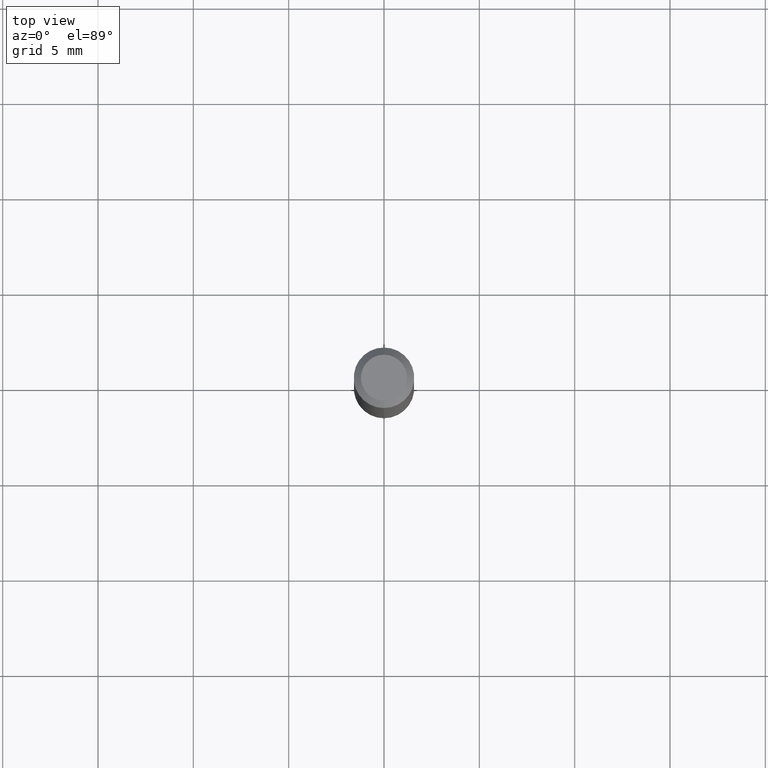
[diagram: clean part render]
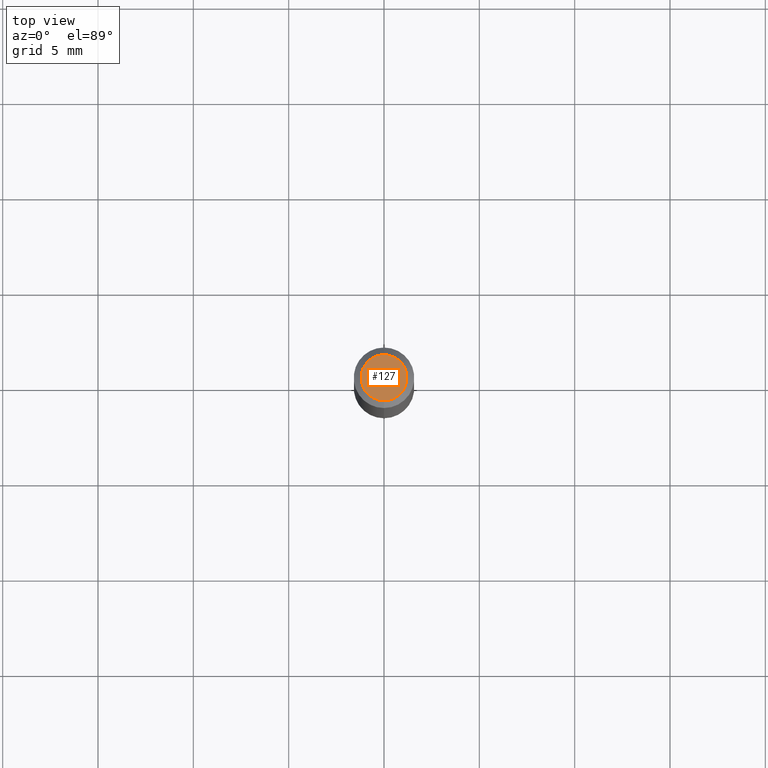
[diagram: same view with one face highlighted and labeled with its STEP entity id]
A machine part, top view. The second image highlights one B-rep face of the part: STEP entity #127.
In plain terms, the highlighted planar face has unit normal (0, -0, -1).
Its self-contained STEP definition (entity closure, byte-faithful):
#1 = AXIS2_PLACEMENT_3D ( 'NONE', #476, #196, #314 ) ;
#2 = PLANE ( 'NONE',  #383 ) ;
#22 = EDGE_CURVE ( 'NONE', #292, #320, #153, .T. ) ;
#35 = CIRCLE ( 'NONE', #1, 0.04749999999999999362 ) ;
#127 = ADVANCED_FACE ( 'NONE', ( #507 ), #2, .F. ) ;
#139 = EDGE_LOOP ( 'NONE', ( #345, #169 ) ) ;
#153 = CIRCLE ( 'NONE', #193, 0.04749999999999999362 ) ;
#156 = CARTESIAN_POINT ( 'NONE',  ( 3.316907271900976096E-16, 0.04749999999999999362, -4.610142825763763803E-17 ) ) ;
#169 = ORIENTED_EDGE ( 'NONE', *, *, #203, .T. ) ;
#193 = AXIS2_PLACEMENT_3D ( 'NONE', #267, #305, #259 ) ;
#196 = DIRECTION ( 'NONE',  ( -2.445457456841119029E-29, 3.491497591749743261E-15, 1.000000000000000000 ) ) ;
#203 = EDGE_CURVE ( 'NONE', #320, #292, #35, .T. ) ;
#259 = DIRECTION ( 'NONE',  ( -6.982962677686266711E-15, -1.000000000000000000, 3.491497591749742866E-15 ) ) ;
#267 = CARTESIAN_POINT ( 'NONE',  ( -5.856611750149541241E-45, 8.361767146779234630E-31, 2.394894147009503046E-16 ) ) ;
#292 = VERTEX_POINT ( 'NONE', #478 ) ;
#305 = DIRECTION ( 'NONE',  ( -2.445457456841119029E-29, 3.491497591749743261E-15, 1.000000000000000000 ) ) ;
#314 = DIRECTION ( 'NONE',  ( -6.982962677686266711E-15, -1.000000000000000000, 3.491497591749742866E-15 ) ) ;
#320 = VERTEX_POINT ( 'NONE', #436 ) ;
#345 = ORIENTED_EDGE ( 'NONE', *, *, #22, .T. ) ;
#362 = DIRECTION ( 'NONE',  ( 6.982962677686265922E-15, 1.000000000000000000, -3.491497591749742866E-15 ) ) ;
#383 = AXIS2_PLACEMENT_3D ( 'NONE', #156, #435, #362 ) ;
#435 = DIRECTION ( 'NONE',  ( 2.445457456841119029E-29, -3.491497591749742866E-15, -1.000000000000000000 ) ) ;
#436 = CARTESIAN_POINT ( 'NONE',  ( -3.773273898774340269E-16, -0.04749999999999999362, 4.053355503090630888E-16 ) ) ;
#476 = CARTESIAN_POINT ( 'NONE',  ( -5.856611750149541241E-45, 8.361767146779234630E-31, 2.394894147009503046E-16 ) ) ;
#478 = CARTESIAN_POINT ( 'NONE',  ( 3.840629472727447874E-16, 0.04749999999999999362, 7.364327909283752044E-17 ) ) ;
#507 = FACE_OUTER_BOUND ( 'NONE', #139, .T. ) ;